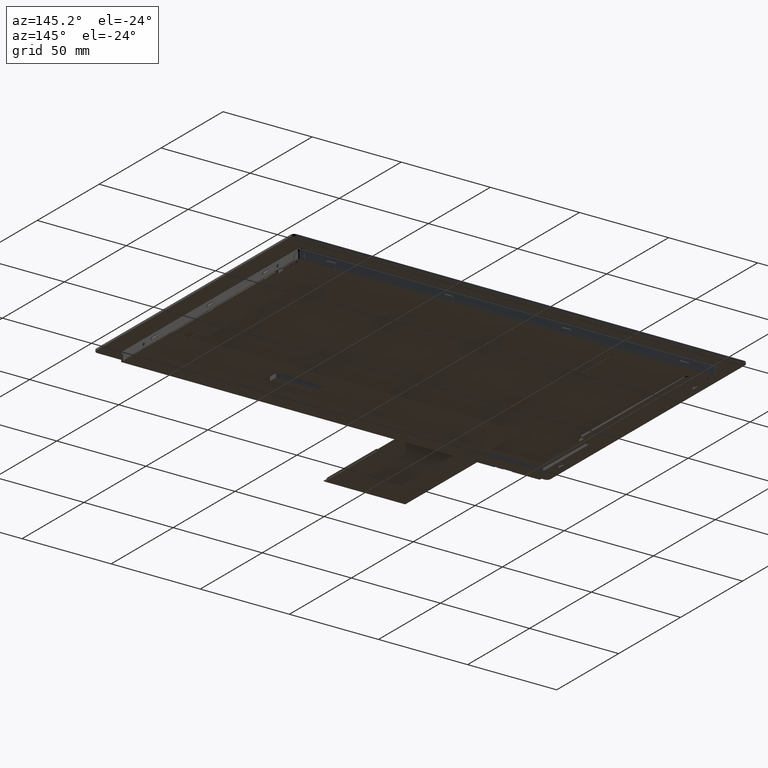
[diagram: clean part render]
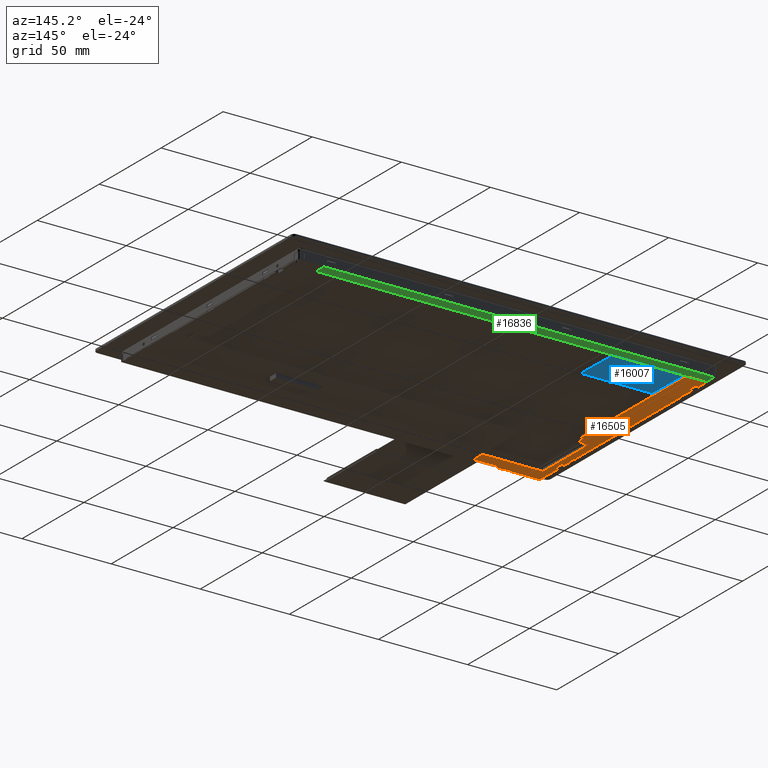
[diagram: same view with three faces highlighted in distinct colors, each labeled with its STEP entity id]
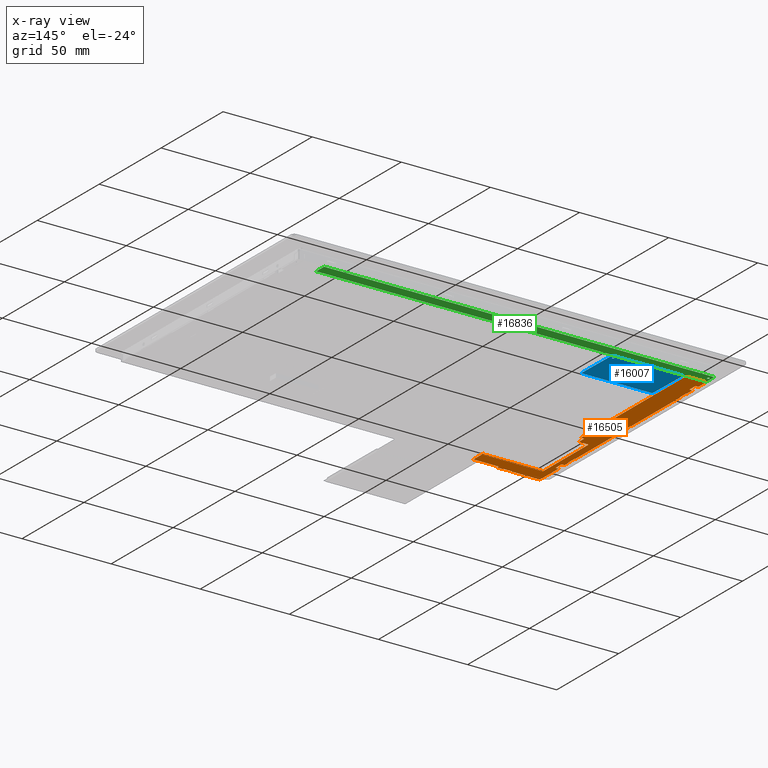
[diagram: x-ray of the same camera — body ghosted, the three highlighted faces saturated]
A machine part, auxiliary view with three faces highlighted in distinct colors.
The next image is the same camera in x-ray (body ghosted, the three faces saturated) — at least one of them is partly hidden behind the body in this view.
Their STEP definitions:

[orange] entity #16505 — the highlighted planar face has unit normal (0, -0, -1).
#540=PLANE('',#17594);
#1371=FACE_OUTER_BOUND('',#2285,.T.);
#2285=EDGE_LOOP('',(#13897,#13898,#13899,#13900,#13901,#13902,#13903,#13904,
#13905,#13906,#13907,#13908,#13909,#13910,#13911,#13912,#13913,#13914,#13915,
#13916,#13917,#13918,#13919,#13920,#13921,#13922,#13923,#13924,#13925,#13926,
#13927,#13928,#13929,#13930,#13931,#13932,#13933,#13934,#13935,#13936,#13937,
#13938,#13939,#13940,#13941,#13942,#13943,#13944));
#3319=LINE('',#24171,#5440);
#3346=LINE('',#24230,#5467);
#3501=LINE('',#24584,#5622);
#3515=LINE('',#24613,#5636);
#3520=LINE('',#24627,#5641);
#3537=LINE('',#24660,#5658);
#3539=LINE('',#24664,#5660);
#3542=LINE('',#24671,#5663);
#3546=LINE('',#24680,#5667);
#3646=LINE('',#24948,#5767);
#3648=LINE('',#24953,#5769);
#3651=LINE('',#24959,#5772);
#3656=LINE('',#24969,#5777);
#3658=LINE('',#24974,#5779);
#3661=LINE('',#24980,#5782);
#3666=LINE('',#24990,#5787);
#3668=LINE('',#24995,#5789);
#3671=LINE('',#25001,#5792);
#3769=LINE('',#25213,#5890);
#3774=LINE('',#25224,#5895);
#3776=LINE('',#25228,#5897);
#3825=LINE('',#25338,#5946);
#3828=LINE('',#25342,#5949);
#3829=LINE('',#25345,#5950);
#3831=LINE('',#25349,#5952);
#3833=LINE('',#25352,#5954);
#3989=LINE('',#25683,#6110);
#3990=LINE('',#25685,#6111);
#3991=LINE('',#25689,#6112);
#3992=LINE('',#25693,#6113);
#3993=LINE('',#25694,#6114);
#3994=LINE('',#25695,#6115);
#3995=LINE('',#25696,#6116);
#3996=LINE('',#25698,#6117);
#3997=LINE('',#25700,#6118);
#3998=LINE('',#25704,#6119);
#3999=LINE('',#25708,#6120);
#4000=LINE('',#25709,#6121);
#5440=VECTOR('',#19375,10.);
#5467=VECTOR('',#19436,10.);
#5622=VECTOR('',#19683,10.);
#5636=VECTOR('',#19705,10.);
#5641=VECTOR('',#19718,10.);
#5658=VECTOR('',#19743,10.);
#5660=VECTOR('',#19747,10.);
#5663=VECTOR('',#19752,10.);
#5667=VECTOR('',#19758,10.);
#5767=VECTOR('',#20022,10.);
#5769=VECTOR('',#20026,10.);
#5772=VECTOR('',#20031,10.);
#5777=VECTOR('',#20038,10.);
#5779=VECTOR('',#20042,10.);
#5782=VECTOR('',#20047,10.);
#5787=VECTOR('',#20054,10.);
#5789=VECTOR('',#20058,10.);
#5792=VECTOR('',#20063,10.);
#5890=VECTOR('',#20249,10.);
#5895=VECTOR('',#20256,10.);
#5897=VECTOR('',#20260,10.);
#5946=VECTOR('',#20359,10.);
#5949=VECTOR('',#20362,10.);
#5950=VECTOR('',#20365,10.);
#5952=VECTOR('',#20369,10.);
#5954=VECTOR('',#20373,10.);
#6110=VECTOR('',#20711,10.);
#6111=VECTOR('',#20712,10.);
#6112=VECTOR('',#20715,10.);
#6113=VECTOR('',#20718,10.);
#6114=VECTOR('',#20719,10.);
#6115=VECTOR('',#20720,10.);
#6116=VECTOR('',#20721,10.);
#6117=VECTOR('',#20722,10.);
#6118=VECTOR('',#20723,10.);
#6119=VECTOR('',#20726,10.);
#6120=VECTOR('',#20729,10.);
#6121=VECTOR('',#20730,10.);
#7076=CIRCLE('',#17346,0.500000000000043);
#7077=CIRCLE('',#17349,0.500000000000007);
#7078=CIRCLE('',#17352,0.50000000000002);
#7108=CIRCLE('',#17477,0.700000000000012);
#7110=CIRCLE('',#17480,0.499999999999989);
#7111=CIRCLE('',#17492,2.00000000000003);
#7128=CIRCLE('',#17595,0.29999999999994);
#7129=CIRCLE('',#17596,0.300000000000029);
#7130=CIRCLE('',#17597,0.300000000000074);
#7131=CIRCLE('',#17598,0.300000000000029);
#7686=VERTEX_POINT('',#24168);
#7687=VERTEX_POINT('',#24170);
#7702=VERTEX_POINT('',#24228);
#7855=VERTEX_POINT('',#24582);
#7866=VERTEX_POINT('',#24612);
#7871=VERTEX_POINT('',#24626);
#7883=VERTEX_POINT('',#24659);
#7884=VERTEX_POINT('',#24663);
#7886=VERTEX_POINT('',#24669);
#7887=VERTEX_POINT('',#24670);
#7890=VERTEX_POINT('',#24678);
#7891=VERTEX_POINT('',#24679);
#7895=VERTEX_POINT('',#24701);
#7975=VERTEX_POINT('',#24942);
#7977=VERTEX_POINT('',#24946);
#7979=VERTEX_POINT('',#24951);
#7980=VERTEX_POINT('',#24956);
#7983=VERTEX_POINT('',#24963);
#7985=VERTEX_POINT('',#24967);
#7987=VERTEX_POINT('',#24972);
#7988=VERTEX_POINT('',#24977);
#7991=VERTEX_POINT('',#24984);
#7993=VERTEX_POINT('',#24988);
#7995=VERTEX_POINT('',#24993);
#7996=VERTEX_POINT('',#24998);
#8066=VERTEX_POINT('',#25210);
#8067=VERTEX_POINT('',#25212);
#8071=VERTEX_POINT('',#25221);
#8072=VERTEX_POINT('',#25223);
#8073=VERTEX_POINT('',#25227);
#8075=VERTEX_POINT('',#25233);
#8076=VERTEX_POINT('',#25234);
#8109=VERTEX_POINT('',#25337);
#8110=VERTEX_POINT('',#25340);
#8111=VERTEX_POINT('',#25344);
#8112=VERTEX_POINT('',#25348);
#8196=VERTEX_POINT('',#25682);
#8197=VERTEX_POINT('',#25684);
#8198=VERTEX_POINT('',#25686);
#8199=VERTEX_POINT('',#25688);
#8200=VERTEX_POINT('',#25690);
#8201=VERTEX_POINT('',#25692);
#8202=VERTEX_POINT('',#25697);
#8203=VERTEX_POINT('',#25699);
#8204=VERTEX_POINT('',#25701);
#8205=VERTEX_POINT('',#25703);
#8206=VERTEX_POINT('',#25705);
#8207=VERTEX_POINT('',#25707);
#9496=EDGE_CURVE('',#7687,#7686,#3319,.T.);
#9526=EDGE_CURVE('',#7702,#7686,#3346,.T.);
#9703=EDGE_CURVE('',#7855,#7702,#3501,.T.);
#9717=EDGE_CURVE('',#7687,#7866,#3515,.T.);
#9724=EDGE_CURVE('',#7866,#7871,#3520,.T.);
#9741=EDGE_CURVE('',#7871,#7883,#3537,.T.);
#9743=EDGE_CURVE('',#7883,#7884,#3539,.T.);
#9746=EDGE_CURVE('',#7886,#7887,#3542,.T.);
#9750=EDGE_CURVE('',#7890,#7891,#3546,.T.);
#9762=EDGE_CURVE('',#7891,#7895,#7076,.T.);
#9765=EDGE_CURVE('',#7887,#7890,#7077,.T.);
#9767=EDGE_CURVE('',#7884,#7886,#7078,.T.);
#9880=EDGE_CURVE('',#7975,#7977,#3646,.T.);
#9882=EDGE_CURVE('',#7977,#7979,#3648,.T.);
#9885=EDGE_CURVE('',#7979,#7980,#3651,.T.);
#9890=EDGE_CURVE('',#7983,#7985,#3656,.T.);
#9892=EDGE_CURVE('',#7985,#7987,#3658,.T.);
#9895=EDGE_CURVE('',#7987,#7988,#3661,.T.);
#9900=EDGE_CURVE('',#7991,#7993,#3666,.T.);
#9902=EDGE_CURVE('',#7993,#7995,#3668,.T.);
#9905=EDGE_CURVE('',#7995,#7996,#3671,.T.);
#10011=EDGE_CURVE('',#8066,#8067,#3769,.T.);
#10016=EDGE_CURVE('',#8071,#8072,#3774,.T.);
#10018=EDGE_CURVE('',#7895,#8073,#3776,.T.);
#10021=EDGE_CURVE('',#8075,#8076,#7108,.T.);
#10025=EDGE_CURVE('',#8073,#8071,#7110,.T.);
#10056=EDGE_CURVE('',#8072,#8066,#7111,.T.);
#10073=EDGE_CURVE('',#8109,#8076,#3825,.T.);
#10076=EDGE_CURVE('',#7855,#8110,#3828,.T.);
#10077=EDGE_CURVE('',#8111,#8109,#3829,.T.);
#10079=EDGE_CURVE('',#8110,#8112,#3831,.T.);
#10081=EDGE_CURVE('',#8112,#8111,#3833,.T.);
#10253=EDGE_CURVE('',#8075,#8196,#3989,.T.);
#10254=EDGE_CURVE('',#8197,#8196,#3990,.T.);
#10255=EDGE_CURVE('',#8198,#8197,#7128,.T.);
#10256=EDGE_CURVE('',#8199,#8198,#3991,.T.);
#10257=EDGE_CURVE('',#8200,#8199,#7129,.T.);
#10258=EDGE_CURVE('',#8201,#8200,#3992,.T.);
#10259=EDGE_CURVE('',#8201,#7975,#3993,.T.);
#10260=EDGE_CURVE('',#7980,#7983,#3994,.T.);
#10261=EDGE_CURVE('',#7988,#7991,#3995,.T.);
#10262=EDGE_CURVE('',#7996,#8202,#3996,.T.);
#10263=EDGE_CURVE('',#8203,#8202,#3997,.T.);
#10264=EDGE_CURVE('',#8204,#8203,#7130,.T.);
#10265=EDGE_CURVE('',#8205,#8204,#3998,.T.);
#10266=EDGE_CURVE('',#8206,#8205,#7131,.T.);
#10267=EDGE_CURVE('',#8207,#8206,#3999,.T.);
#10268=EDGE_CURVE('',#8207,#8067,#4000,.T.);
#13897=ORIENTED_EDGE('',*,*,#9496,.T.);
#13898=ORIENTED_EDGE('',*,*,#9526,.F.);
#13899=ORIENTED_EDGE('',*,*,#9703,.F.);
#13900=ORIENTED_EDGE('',*,*,#10076,.T.);
#13901=ORIENTED_EDGE('',*,*,#10079,.T.);
#13902=ORIENTED_EDGE('',*,*,#10081,.T.);
#13903=ORIENTED_EDGE('',*,*,#10077,.T.);
#13904=ORIENTED_EDGE('',*,*,#10073,.T.);
#13905=ORIENTED_EDGE('',*,*,#10021,.F.);
#13906=ORIENTED_EDGE('',*,*,#10253,.T.);
#13907=ORIENTED_EDGE('',*,*,#10254,.F.);
#13908=ORIENTED_EDGE('',*,*,#10255,.F.);
#13909=ORIENTED_EDGE('',*,*,#10256,.F.);
#13910=ORIENTED_EDGE('',*,*,#10257,.F.);
#13911=ORIENTED_EDGE('',*,*,#10258,.F.);
#13912=ORIENTED_EDGE('',*,*,#10259,.T.);
#13913=ORIENTED_EDGE('',*,*,#9880,.T.);
#13914=ORIENTED_EDGE('',*,*,#9882,.T.);
#13915=ORIENTED_EDGE('',*,*,#9885,.T.);
#13916=ORIENTED_EDGE('',*,*,#10260,.T.);
#13917=ORIENTED_EDGE('',*,*,#9890,.T.);
#13918=ORIENTED_EDGE('',*,*,#9892,.T.);
#13919=ORIENTED_EDGE('',*,*,#9895,.T.);
#13920=ORIENTED_EDGE('',*,*,#10261,.T.);
#13921=ORIENTED_EDGE('',*,*,#9900,.T.);
#13922=ORIENTED_EDGE('',*,*,#9902,.T.);
#13923=ORIENTED_EDGE('',*,*,#9905,.T.);
#13924=ORIENTED_EDGE('',*,*,#10262,.T.);
#13925=ORIENTED_EDGE('',*,*,#10263,.F.);
#13926=ORIENTED_EDGE('',*,*,#10264,.F.);
#13927=ORIENTED_EDGE('',*,*,#10265,.F.);
#13928=ORIENTED_EDGE('',*,*,#10266,.F.);
#13929=ORIENTED_EDGE('',*,*,#10267,.F.);
#13930=ORIENTED_EDGE('',*,*,#10268,.T.);
#13931=ORIENTED_EDGE('',*,*,#10011,.F.);
#13932=ORIENTED_EDGE('',*,*,#10056,.F.);
#13933=ORIENTED_EDGE('',*,*,#10016,.F.);
#13934=ORIENTED_EDGE('',*,*,#10025,.F.);
#13935=ORIENTED_EDGE('',*,*,#10018,.F.);
#13936=ORIENTED_EDGE('',*,*,#9762,.F.);
#13937=ORIENTED_EDGE('',*,*,#9750,.F.);
#13938=ORIENTED_EDGE('',*,*,#9765,.F.);
#13939=ORIENTED_EDGE('',*,*,#9746,.F.);
#13940=ORIENTED_EDGE('',*,*,#9767,.F.);
#13941=ORIENTED_EDGE('',*,*,#9743,.F.);
#13942=ORIENTED_EDGE('',*,*,#9741,.F.);
#13943=ORIENTED_EDGE('',*,*,#9724,.F.);
#13944=ORIENTED_EDGE('',*,*,#9717,.F.);
#16505=ADVANCED_FACE('',(#1371),#540,.T.);
#17346=AXIS2_PLACEMENT_3D('',#24702,#19782,#19783);
#17349=AXIS2_PLACEMENT_3D('',#24707,#19789,#19790);
#17352=AXIS2_PLACEMENT_3D('',#24710,#19795,#19796);
#17477=AXIS2_PLACEMENT_3D('',#25235,#20265,#20266);
#17480=AXIS2_PLACEMENT_3D('',#25242,#20273,#20274);
#17492=AXIS2_PLACEMENT_3D('',#25305,#20326,#20327);
#17594=AXIS2_PLACEMENT_3D('',#25681,#20709,#20710);
#17595=AXIS2_PLACEMENT_3D('',#25687,#20713,#20714);
#17596=AXIS2_PLACEMENT_3D('',#25691,#20716,#20717);
#17597=AXIS2_PLACEMENT_3D('',#25702,#20724,#20725);
#17598=AXIS2_PLACEMENT_3D('',#25706,#20727,#20728);
#19375=DIRECTION('',(-4.44089209850062E-16,-1.,2.86245104878698E-17));
#19436=DIRECTION('',(1.,-4.44089209850062E-16,1.22123378696216E-16));
#19683=DIRECTION('',(4.44089209850062E-16,1.,-2.86245104878698E-17));
#19705=DIRECTION('',(-1.,4.44089209850062E-16,-1.22123378696216E-16));
#19718=DIRECTION('',(-4.44089209850062E-16,-1.,2.86245104878698E-17));
#19743=DIRECTION('',(-1.,4.44089209850062E-16,-1.22123378696216E-16));
#19747=DIRECTION('',(4.44089209850062E-16,1.,-2.86245104878698E-17));
#19752=DIRECTION('',(1.,-4.44089209850062E-16,1.22123378696216E-16));
#19758=DIRECTION('',(4.44089209850062E-16,1.,-2.86245104878698E-17));
#19782=DIRECTION('center_axis',(-1.21803436295837E-15,1.31153323116673E-15,
-1.));
#19783=DIRECTION('ref_axis',(-7.06101843661539E-14,1.,1.08159851413718E-15));
#19789=DIRECTION('center_axis',(-1.4622811203507E-15,1.36878225214237E-15,
1.));
#19790=DIRECTION('ref_axis',(1.,-2.70894418008534E-14,1.23234640332136E-15));
#19795=DIRECTION('center_axis',(-1.21803436295828E-15,1.31153323116664E-15,
-1.));
#19796=DIRECTION('ref_axis',(-3.50830475781535E-14,1.,1.08159851413724E-15));
#20022=DIRECTION('',(1.,-4.44089209850062E-16,1.22123378696216E-16));
#20026=DIRECTION('',(4.44089209850062E-16,1.,-2.86245104878698E-17));
#20031=DIRECTION('',(-1.,4.44089209850062E-16,-1.22123378696216E-16));
#20038=DIRECTION('',(1.,-4.44089209850062E-16,1.22123378696216E-16));
#20042=DIRECTION('',(4.44089209850062E-16,1.,-2.86245104878698E-17));
#20047=DIRECTION('',(-1.,4.44089209850062E-16,-1.22123378696216E-16));
#20054=DIRECTION('',(1.,-4.44089209850062E-16,1.22123378696216E-16));
#20058=DIRECTION('',(4.44089209850062E-16,1.,-2.86245104878698E-17));
#20063=DIRECTION('',(-1.,4.44089209850062E-16,-1.22123378696216E-16));
#20249=DIRECTION('',(-1.,4.44089209850062E-16,-1.22123378696216E-16));
#20256=DIRECTION('',(4.44089209850062E-16,1.,-2.86245104878698E-17));
#20260=DIRECTION('',(1.,-4.44089209850062E-16,1.22123378696216E-16));
#20265=DIRECTION('center_axis',(8.35132151057001E-16,9.85880040241111E-16,
1.));
#20266=DIRECTION('ref_axis',(-4.44089209850062E-16,-1.,8.21640956648683E-16));
#20273=DIRECTION('center_axis',(-1.46228112035058E-15,1.36878225214226E-15,
1.));
#20274=DIRECTION('ref_axis',(1.,3.50830475781557E-14,1.23234640332139E-15));
#20326=DIRECTION('center_axis',(-4.57162814109842E-16,-3.06414924925754E-16,
1.));
#20327=DIRECTION('ref_axis',(1.82076576038523E-14,1.,2.48931245668418E-16));
#20359=DIRECTION('',(-1.,4.44089209850062E-16,-1.22123378696216E-16));
#20362=DIRECTION('',(-1.,4.44089209850062E-16,-1.22123378696216E-16));
#20365=DIRECTION('',(-4.44089209850062E-16,-1.,2.86245104878698E-17));
#20369=DIRECTION('',(4.44089209850062E-16,1.,-2.86245104878698E-17));
#20373=DIRECTION('',(-1.,4.44089209850062E-16,-1.22123378696216E-16));
#20709=DIRECTION('center_axis',(1.22123378696216E-16,-2.86245104878698E-17,
-1.));
#20710=DIRECTION('ref_axis',(-1.,4.44089209850062E-16,-1.22123378696216E-16));
#20711=DIRECTION('',(4.44089209850062E-16,1.,-2.86245104878698E-17));
#20712=DIRECTION('',(-1.,4.44089209850062E-16,-1.22123378696216E-16));
#20713=DIRECTION('center_axis',(-2.11147285739392E-15,2.20497172560213E-15,
-1.));
#20714=DIRECTION('ref_axis',(-1.7807977314991E-13,-1.,-1.82174719722111E-15));
#20715=DIRECTION('',(-4.44089209850062E-16,-1.,2.86245104878698E-17));
#20716=DIRECTION('center_axis',(2.35571961478736E-15,2.2049717256032E-15,
-1.));
#20717=DIRECTION('ref_axis',(1.,8.83737527601538E-14,1.97249508640463E-15));
#20718=DIRECTION('',(1.,-4.44089209850062E-16,1.22123378696216E-16));
#20719=DIRECTION('',(4.44089209850062E-16,1.,-2.86245104878698E-17));
#20720=DIRECTION('',(4.44089209850062E-16,1.,-2.86245104878698E-17));
#20721=DIRECTION('',(4.44089209850062E-16,1.,-2.86245104878698E-17));
#20722=DIRECTION('',(4.44089209850062E-16,1.,-2.86245104878698E-17));
#20723=DIRECTION('',(-1.,4.44089209850062E-16,-1.22123378696216E-16));
#20724=DIRECTION('center_axis',(-4.34506909348693E-15,4.43856796169501E-15,
-1.));
#20725=DIRECTION('ref_axis',(2.95615384023452E-13,-1.,-4.59730475878245E-15));
#20726=DIRECTION('',(-4.44089209850062E-16,-1.,2.86245104878698E-17));
#20727=DIRECTION('center_axis',(2.35571961478736E-15,2.2049717256032E-15,
-1.));
#20728=DIRECTION('ref_axis',(1.,8.83737527601538E-14,1.97249508640463E-15));
#20729=DIRECTION('',(1.,-4.44089209850062E-16,1.22123378696216E-16));
#20730=DIRECTION('',(4.44089209850062E-16,1.,-2.86245104878698E-17));
#24168=CARTESIAN_POINT('',(-77.8300000000001,-69.5699999999934,-7.13999999999999));
#24170=CARTESIAN_POINT('',(-77.8300000000001,-61.5899999999931,-7.13999999999999));
#24171=CARTESIAN_POINT('',(-77.83,6.27000000000665,-7.14));
#24228=CARTESIAN_POINT('',(-92.0500000000001,-69.5699999999934,-7.14));
#24230=CARTESIAN_POINT('',(-88.8944070343551,-69.5699999999934,-7.13999999999999));
#24582=CARTESIAN_POINT('',(-92.0500000000001,-70.9399999999934,-7.14));
#24584=CARTESIAN_POINT('',(-92.0500000000001,-3.41249999999343,-7.14));
#24612=CARTESIAN_POINT('',(-78.33,-61.5899999999931,-7.13999999999999));
#24613=CARTESIAN_POINT('',(-87.4087499999975,-61.5899999999931,-7.13999999999999));
#24626=CARTESIAN_POINT('',(-78.33,-62.2899999999935,-7.13999999999999));
#24627=CARTESIAN_POINT('',(-78.33,-61.5899999999935,-7.13999999999999));
#24659=CARTESIAN_POINT('',(-111.86,-62.2899999999934,-7.14));
#24660=CARTESIAN_POINT('',(-78.33,-62.2899999999935,-7.13999999999999));
#24663=CARTESIAN_POINT('',(-111.86,-25.9499999999934,-7.14));
#24664=CARTESIAN_POINT('',(-111.86,-62.2899999999934,-7.14));
#24669=CARTESIAN_POINT('',(-111.36,-25.4499999999934,-7.14));
#24670=CARTESIAN_POINT('',(-106.86,-25.4499999999934,-7.14));
#24671=CARTESIAN_POINT('',(-111.36,-25.4499999999934,-7.14));
#24678=CARTESIAN_POINT('',(-106.36,-24.9499999999934,-7.14));
#24679=CARTESIAN_POINT('',(-106.36,-21.6499999999934,-7.14));
#24680=CARTESIAN_POINT('',(-106.36,-24.9499999999934,-7.14));
#24701=CARTESIAN_POINT('',(-105.86,-21.1499999999934,-7.14));
#24702=CARTESIAN_POINT('Origin',(-105.86,-21.6499999999935,-7.14));
#24707=CARTESIAN_POINT('Origin',(-106.86,-24.9499999999934,-7.14));
#24710=CARTESIAN_POINT('Origin',(-111.36,-25.9499999999934,-7.14));
#24942=CARTESIAN_POINT('',(-116.08,-47.3499999999934,-7.14));
#24946=CARTESIAN_POINT('',(-115.78,-47.3499999999934,-7.14));
#24948=CARTESIAN_POINT('',(-116.08,-47.3499999999934,-7.14));
#24951=CARTESIAN_POINT('',(-115.78,-42.3499999999934,-7.14));
#24953=CARTESIAN_POINT('',(-115.78,-47.3499999999934,-7.14));
#24956=CARTESIAN_POINT('',(-116.08,-42.3499999999934,-7.14));
#24959=CARTESIAN_POINT('',(-115.78,-42.3499999999934,-7.14));
#24963=CARTESIAN_POINT('',(-116.08,-2.34999999999343,-7.14));
#24967=CARTESIAN_POINT('',(-115.78,-2.34999999999343,-7.14));
#24969=CARTESIAN_POINT('',(-116.08,-2.34999999999343,-7.14));
#24972=CARTESIAN_POINT('',(-115.78,2.65000000000657,-7.14));
#24974=CARTESIAN_POINT('',(-115.78,-2.34999999999343,-7.14));
#24977=CARTESIAN_POINT('',(-116.08,2.65000000000657,-7.14));
#24980=CARTESIAN_POINT('',(-115.78,2.65000000000657,-7.14));
#24984=CARTESIAN_POINT('',(-116.08,42.6500000000066,-7.14));
#24988=CARTESIAN_POINT('',(-115.78,42.6500000000066,-7.14));
#24990=CARTESIAN_POINT('',(-116.08,42.6500000000066,-7.14));
#24993=CARTESIAN_POINT('',(-115.78,47.6500000000066,-7.14));
#24995=CARTESIAN_POINT('',(-115.78,42.6500000000066,-7.14));
#24998=CARTESIAN_POINT('',(-116.08,47.6500000000066,-7.14));
#25001=CARTESIAN_POINT('',(-115.78,47.6500000000066,-7.14));
#25210=CARTESIAN_POINT('',(-106.56,63.5800000000066,-7.14));
#25212=CARTESIAN_POINT('',(-116.08,63.5800000000066,-7.14));
#25213=CARTESIAN_POINT('',(-106.56,63.5800000000066,-7.14));
#25221=CARTESIAN_POINT('',(-104.56,-20.6499999999934,-7.14));
#25223=CARTESIAN_POINT('',(-104.56,61.5800000000066,-7.14));
#25224=CARTESIAN_POINT('',(-104.56,-20.6499999999934,-7.14));
#25227=CARTESIAN_POINT('',(-105.06,-21.1499999999934,-7.14));
#25228=CARTESIAN_POINT('',(-105.86,-21.1499999999934,-7.14));
#25233=CARTESIAN_POINT('',(-116.08,-70.2399999999934,-7.14));
#25234=CARTESIAN_POINT('',(-115.38,-70.9399999999934,-7.14));
#25235=CARTESIAN_POINT('Origin',(-115.38,-70.2399999999934,-7.14));
#25242=CARTESIAN_POINT('Origin',(-105.06,-20.6499999999934,-7.14));
#25305=CARTESIAN_POINT('Origin',(-106.56,61.5800000000065,-7.14));
#25337=CARTESIAN_POINT('',(-100.5,-70.9399999999934,-7.14));
#25338=CARTESIAN_POINT('',(-100.5,-70.9399999999934,-7.14));
#25340=CARTESIAN_POINT('',(-95.5,-70.9399999999934,-7.14));
#25342=CARTESIAN_POINT('',(-92.05,-70.9399999999934,-7.14));
#25344=CARTESIAN_POINT('',(-100.5,-70.6399999999934,-7.14));
#25345=CARTESIAN_POINT('',(-100.5,-70.6399999999934,-7.14));
#25348=CARTESIAN_POINT('',(-95.5,-70.6399999999934,-7.14));
#25349=CARTESIAN_POINT('',(-95.5,-70.9399999999934,-7.14));
#25352=CARTESIAN_POINT('',(-95.5,-70.6399999999934,-7.14));
#25681=CARTESIAN_POINT('Origin',(-92.93,63.5800000000066,-7.14));
#25682=CARTESIAN_POINT('',(-116.08,-55.7499999999934,-7.14));
#25683=CARTESIAN_POINT('',(-116.08,-70.2399999999934,-7.14));
#25684=CARTESIAN_POINT('',(-114.7,-55.7499999999934,-7.14));
#25685=CARTESIAN_POINT('',(-114.7,-55.7499999999934,-7.14));
#25686=CARTESIAN_POINT('',(-114.4,-55.4499999999934,-7.14));
#25687=CARTESIAN_POINT('Origin',(-114.7,-55.4499999999935,-7.14));
#25688=CARTESIAN_POINT('',(-114.4,-51.2499999999934,-7.14));
#25689=CARTESIAN_POINT('',(-114.4,-51.2499999999934,-7.14));
#25690=CARTESIAN_POINT('',(-114.7,-50.9499999999934,-7.14));
#25691=CARTESIAN_POINT('Origin',(-114.7,-51.2499999999935,-7.14));
#25692=CARTESIAN_POINT('',(-116.08,-50.9499999999934,-7.14));
#25693=CARTESIAN_POINT('',(-116.08,-50.9499999999934,-7.14));
#25694=CARTESIAN_POINT('',(-116.08,-50.9499999999934,-7.14));
#25695=CARTESIAN_POINT('',(-116.08,-42.3499999999934,-7.14));
#25696=CARTESIAN_POINT('',(-116.08,2.65000000000657,-7.14));
#25697=CARTESIAN_POINT('',(-116.08,52.2500000000066,-7.14));
#25698=CARTESIAN_POINT('',(-116.08,47.6500000000066,-7.14));
#25699=CARTESIAN_POINT('',(-114.7,52.2500000000066,-7.14));
#25700=CARTESIAN_POINT('',(-114.7,52.2500000000066,-7.14));
#25701=CARTESIAN_POINT('',(-114.4,52.5500000000066,-7.14));
#25702=CARTESIAN_POINT('Origin',(-114.7,52.5500000000066,-7.14));
#25703=CARTESIAN_POINT('',(-114.4,56.7500000000066,-7.14));
#25704=CARTESIAN_POINT('',(-114.4,56.7500000000066,-7.14));
#25705=CARTESIAN_POINT('',(-114.7,57.0500000000066,-7.14));
#25706=CARTESIAN_POINT('Origin',(-114.7,56.7500000000065,-7.14));
#25707=CARTESIAN_POINT('',(-116.08,57.0500000000066,-7.14));
#25708=CARTESIAN_POINT('',(-116.08,57.0500000000066,-7.14));
#25709=CARTESIAN_POINT('',(-116.08,57.0500000000066,-7.14));

[blue] entity #16007 — the highlighted planar face has unit normal (-0, -0.01, -0.9999).
#46=FACE_BOUND('',#1734,.T.);
#144=PLANE('',#16895);
#873=FACE_OUTER_BOUND('',#1733,.T.);
#1733=EDGE_LOOP('',(#11128,#11129,#11130,#11131,#11132,#11133,#11134,#11135));
#1734=EDGE_LOOP('',(#11136));
#2690=LINE('',#22345,#4811);
#2691=LINE('',#22349,#4812);
#2692=LINE('',#22353,#4813);
#2693=LINE('',#22356,#4814);
#4811=VECTOR('',#18014,10.);
#4812=VECTOR('',#18017,10.);
#4813=VECTOR('',#18020,10.);
#4814=VECTOR('',#18023,10.);
#6929=CIRCLE('',#16889,0.5);
#6931=CIRCLE('',#16893,1.);
#6933=CIRCLE('',#16896,1.);
#6934=CIRCLE('',#16897,1.);
#6935=CIRCLE('',#16898,1.);
#7170=VERTEX_POINT('',#22328);
#7172=VERTEX_POINT('',#22335);
#7173=VERTEX_POINT('',#22336);
#7176=VERTEX_POINT('',#22344);
#7177=VERTEX_POINT('',#22346);
#7178=VERTEX_POINT('',#22348);
#7179=VERTEX_POINT('',#22350);
#7180=VERTEX_POINT('',#22352);
#7181=VERTEX_POINT('',#22354);
#8738=EDGE_CURVE('',#7170,#7170,#6929,.T.);
#8741=EDGE_CURVE('',#7172,#7173,#6931,.T.);
#8745=EDGE_CURVE('',#7176,#7172,#2690,.T.);
#8746=EDGE_CURVE('',#7177,#7176,#6933,.T.);
#8747=EDGE_CURVE('',#7178,#7177,#2691,.T.);
#8748=EDGE_CURVE('',#7179,#7178,#6934,.T.);
#8749=EDGE_CURVE('',#7180,#7179,#2692,.T.);
#8750=EDGE_CURVE('',#7181,#7180,#6935,.T.);
#8751=EDGE_CURVE('',#7173,#7181,#2693,.T.);
#11128=ORIENTED_EDGE('',*,*,#8741,.F.);
#11129=ORIENTED_EDGE('',*,*,#8745,.F.);
#11130=ORIENTED_EDGE('',*,*,#8746,.F.);
#11131=ORIENTED_EDGE('',*,*,#8747,.F.);
#11132=ORIENTED_EDGE('',*,*,#8748,.F.);
#11133=ORIENTED_EDGE('',*,*,#8749,.F.);
#11134=ORIENTED_EDGE('',*,*,#8750,.F.);
#11135=ORIENTED_EDGE('',*,*,#8751,.F.);
#11136=ORIENTED_EDGE('',*,*,#8738,.T.);
#16007=ADVANCED_FACE('',(#873,#46),#144,.T.);
#16889=AXIS2_PLACEMENT_3D('',#22329,#17997,#17998);
#16893=AXIS2_PLACEMENT_3D('',#22337,#18006,#18007);
#16895=AXIS2_PLACEMENT_3D('',#22343,#18012,#18013);
#16896=AXIS2_PLACEMENT_3D('',#22347,#18015,#18016);
#16897=AXIS2_PLACEMENT_3D('',#22351,#18018,#18019);
#16898=AXIS2_PLACEMENT_3D('',#22355,#18021,#18022);
#17997=DIRECTION('center_axis',(9.37948142552227E-17,0.0100076747053688,
0.999949921969591));
#17998=DIRECTION('ref_axis',(1.,-6.66957133182893E-16,-8.71244872466247E-17));
#18006=DIRECTION('center_axis',(9.37948142552227E-17,0.0100076747053688,
0.999949921969591));
#18007=DIRECTION('ref_axis',(-0.707106781186548,-0.707071370671657,0.00707649464807545));
#18012=DIRECTION('center_axis',(-9.37948142552227E-17,-0.0100076747053688,
-0.999949921969591));
#18013=DIRECTION('ref_axis',(-1.,6.66957133182893E-16,8.71244872466247E-17));
#18014=DIRECTION('',(-3.10780451876009E-16,-0.999949921969591,0.0100076747053688));
#18015=DIRECTION('center_axis',(9.37948142552227E-17,0.0100076747053688,
0.999949921969591));
#18016=DIRECTION('ref_axis',(-0.707106781186547,0.707071370671657,-0.00707649464807533));
#18017=DIRECTION('',(-1.,4.44923647814339E-16,8.93466374227965E-17));
#18018=DIRECTION('center_axis',(9.37948142552227E-17,0.0100076747053688,
0.999949921969591));
#18019=DIRECTION('ref_axis',(0.707106781186548,0.707071370671657,-0.00707649464807545));
#18020=DIRECTION('',(9.32505345666097E-16,0.999949921969591,-0.0100076747053688));
#18021=DIRECTION('center_axis',(9.37948142552227E-17,0.0100076747053688,
0.999949921969591));
#18022=DIRECTION('ref_axis',(0.707106781186549,-0.707071370671656,0.00707649464807531));
#18023=DIRECTION('',(1.,-6.66957133182893E-16,-8.71244872466247E-17));
#22328=CARTESIAN_POINT('',(-66.0600000000002,60.8821248760152,-6.80267409690339));
#22329=CARTESIAN_POINT('Origin',(-65.5600000000002,60.8821248760152,-6.80267409690339));
#22335=CARTESIAN_POINT('',(-103.56,38.8832265926842,-6.58250525338527));
#22336=CARTESIAN_POINT('',(-102.56,37.8832766707146,-6.5724975786799));
#22337=CARTESIAN_POINT('Origin',(-102.56,38.8832265926842,-6.58250525338527));
#22343=CARTESIAN_POINT('Origin',(-83.5600000000002,50.3826506953345,-6.69759351249702));
#22344=CARTESIAN_POINT('',(-103.56,61.8820747979848,-6.81268177160876));
#22345=CARTESIAN_POINT('',(-103.56,62.8820247199544,-6.82268944631413));
#22346=CARTESIAN_POINT('',(-102.56,62.8820247199544,-6.82268944631413));
#22347=CARTESIAN_POINT('Origin',(-102.56,61.8820747979848,-6.81268177160876));
#22348=CARTESIAN_POINT('',(-64.5600000000002,62.8820247199544,-6.82268944631413));
#22349=CARTESIAN_POINT('',(-63.5600000000002,62.8820247199544,-6.82268944631413));
#22350=CARTESIAN_POINT('',(-63.5600000000002,61.8820747979848,-6.81268177160876));
#22351=CARTESIAN_POINT('Origin',(-64.5600000000002,61.8820747979848,-6.81268177160876));
#22352=CARTESIAN_POINT('',(-63.5600000000002,38.8832265926842,-6.58250525338528));
#22353=CARTESIAN_POINT('',(-63.5600000000002,37.8832766707146,-6.57249757867991));
#22354=CARTESIAN_POINT('',(-64.5600000000002,37.8832766707146,-6.57249757867991));
#22355=CARTESIAN_POINT('Origin',(-64.5600000000002,38.8832265926842,-6.58250525338528));
#22356=CARTESIAN_POINT('',(-103.56,37.8832766707146,-6.5724975786799));

[green] entity #16836 — the highlighted planar face has unit normal (0, -0, -1).
#139=FACE_BOUND('',#2656,.T.);
#843=PLANE('',#17964);
#1702=FACE_OUTER_BOUND('',#2655,.T.);
#2655=EDGE_LOOP('',(#15754,#15755,#15756,#15757,#15758,#15759));
#2656=EDGE_LOOP('',(#15760));
#4254=LINE('',#26298,#6375);
#4267=LINE('',#26329,#6388);
#4269=LINE('',#26333,#6390);
#4736=LINE('',#27350,#6857);
#4743=LINE('',#27365,#6864);
#4750=LINE('',#27380,#6871);
#6375=VECTOR('',#21234,10.);
#6388=VECTOR('',#21257,10.);
#6390=VECTOR('',#21261,10.);
#6857=VECTOR('',#22168,10.);
#6864=VECTOR('',#22187,10.);
#6871=VECTOR('',#22210,10.);
#7169=CIRCLE('',#17965,0.64999999999902);
#8372=VERTEX_POINT('',#26295);
#8373=VERTEX_POINT('',#26297);
#8386=VERTEX_POINT('',#26327);
#8387=VERTEX_POINT('',#26331);
#8696=VERTEX_POINT('',#27343);
#8698=VERTEX_POINT('',#27349);
#8701=VERTEX_POINT('',#27382);
#10539=EDGE_CURVE('',#8372,#8373,#4254,.T.);
#10556=EDGE_CURVE('',#8386,#8372,#4267,.T.);
#10558=EDGE_CURVE('',#8387,#8386,#4269,.T.);
#11044=EDGE_CURVE('',#8698,#8696,#4736,.T.);
#11053=EDGE_CURVE('',#8698,#8387,#4743,.T.);
#11060=EDGE_CURVE('',#8696,#8373,#4750,.T.);
#11061=EDGE_CURVE('',#8701,#8701,#7169,.T.);
#15754=ORIENTED_EDGE('',*,*,#11053,.F.);
#15755=ORIENTED_EDGE('',*,*,#11044,.T.);
#15756=ORIENTED_EDGE('',*,*,#11060,.T.);
#15757=ORIENTED_EDGE('',*,*,#10539,.F.);
#15758=ORIENTED_EDGE('',*,*,#10556,.F.);
#15759=ORIENTED_EDGE('',*,*,#10558,.F.);
#15760=ORIENTED_EDGE('',*,*,#11061,.F.);
#16836=ADVANCED_FACE('',(#1702,#139),#843,.T.);
#17964=AXIS2_PLACEMENT_3D('',#27381,#22211,#22212);
#17965=AXIS2_PLACEMENT_3D('',#27383,#22213,#22214);
#21234=DIRECTION('',(1.,-4.44089209850062E-16,-3.35335698022006E-16));
#21257=DIRECTION('',(-4.44089209850062E-16,-1.,2.86245104878698E-17));
#21261=DIRECTION('',(-1.,4.44089209850062E-16,-1.22123378696216E-16));
#22168=DIRECTION('',(1.,9.45610998802852E-16,1.22123378696216E-16));
#22187=DIRECTION('',(-4.44089209850062E-16,-1.,2.86245104878698E-17));
#22210=DIRECTION('',(-4.44089209850062E-16,-1.,2.86245104878698E-17));
#22211=DIRECTION('center_axis',(1.22123378696216E-16,-2.86245104878698E-17,
-1.));
#22212=DIRECTION('ref_axis',(-1.,4.44089209850062E-16,-1.22123378696216E-16));
#22213=DIRECTION('center_axis',(3.30341781343543E-16,3.85963720918046E-17,
-1.));
#22214=DIRECTION('ref_axis',(-0.811225738201856,-0.584733102944287,-8.23319291967092E-17));
#26295=CARTESIAN_POINT('',(-115.93,63.8800000000066,-7.03));
#26297=CARTESIAN_POINT('',(103.1008009434,63.8800000000064,-7.03000000000007));
#26298=CARTESIAN_POINT('',(-115.93,63.8800000000065,-7.03));
#26327=CARTESIAN_POINT('',(-115.93,70.1300000000066,-7.03));
#26329=CARTESIAN_POINT('',(-115.93,70.1300000000066,-7.03));
#26331=CARTESIAN_POINT('',(-113.,70.1300000000066,-7.03));
#26333=CARTESIAN_POINT('',(-113.,70.1300000000066,-7.03));
#27343=CARTESIAN_POINT('',(103.1008009434,70.2800000000078,-7.02999999999998));
#27349=CARTESIAN_POINT('',(-113.,70.2800000000076,-7.03));
#27350=CARTESIAN_POINT('',(-113.,70.2800000000076,-7.03));
#27365=CARTESIAN_POINT('',(-113.,70.2800000000076,-7.03));
#27380=CARTESIAN_POINT('',(103.1008009434,70.2800000000078,-7.02999999999998));
#27381=CARTESIAN_POINT('Origin',(-0.861220648654967,82.6346238207605,-7.02999999999999));
#27382=CARTESIAN_POINT('',(-115.04,67.5000000000002,-7.03));
#27383=CARTESIAN_POINT('Origin',(-114.390000000001,67.5000000000091,-7.03));